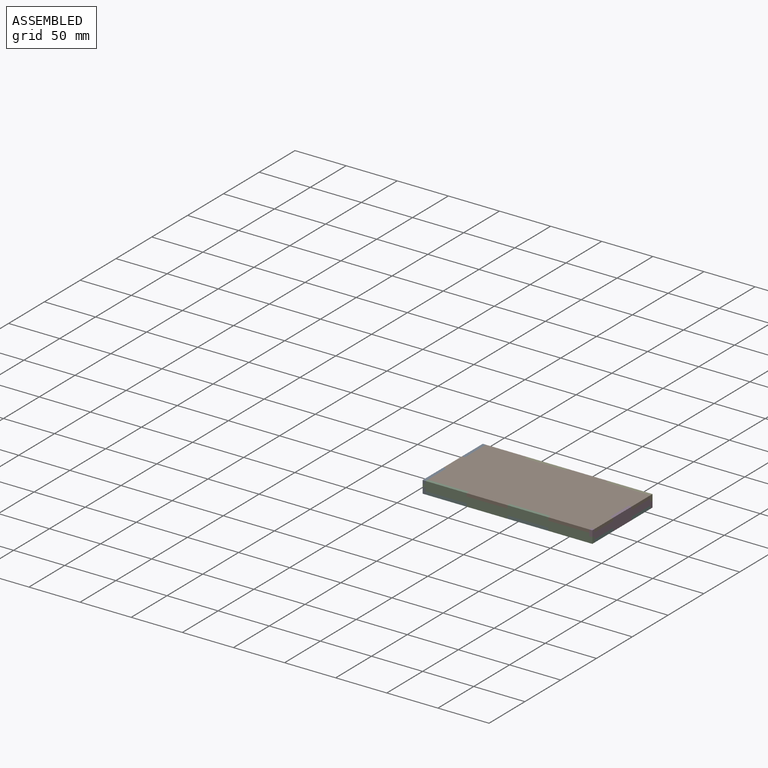
[diagram: assembled view]
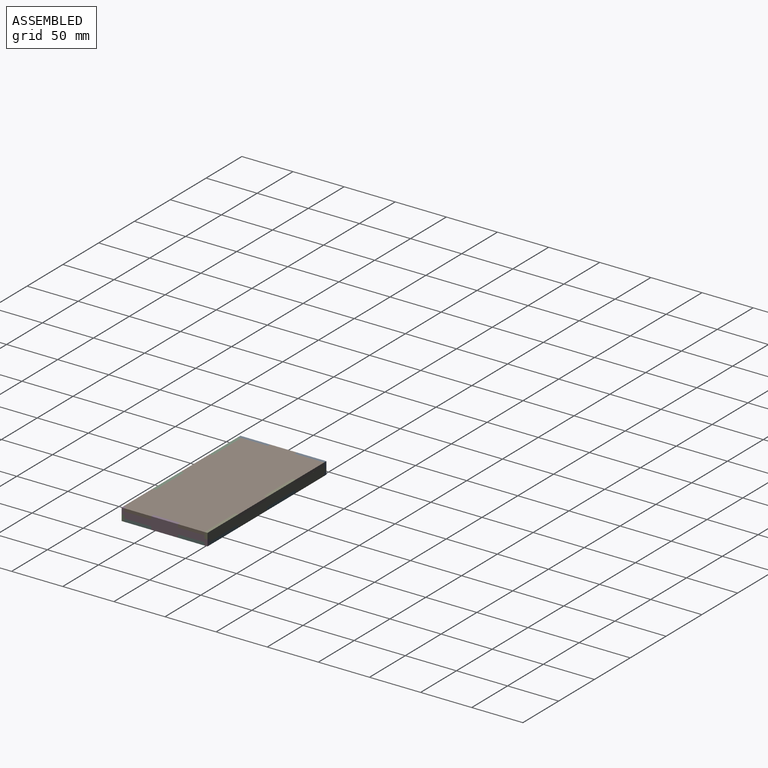
[diagram: assembled view, second angle]
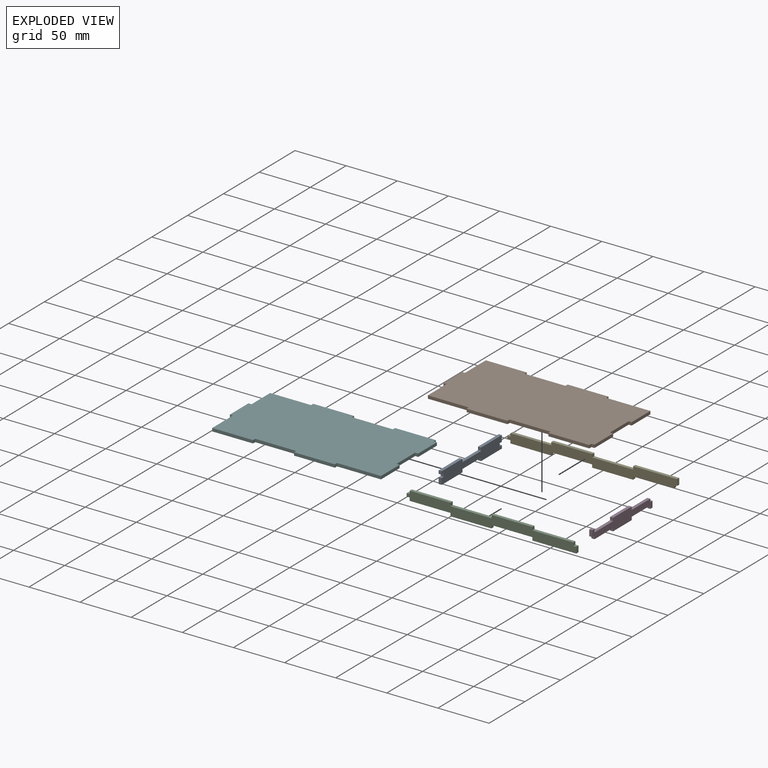
[diagram: exploded view]
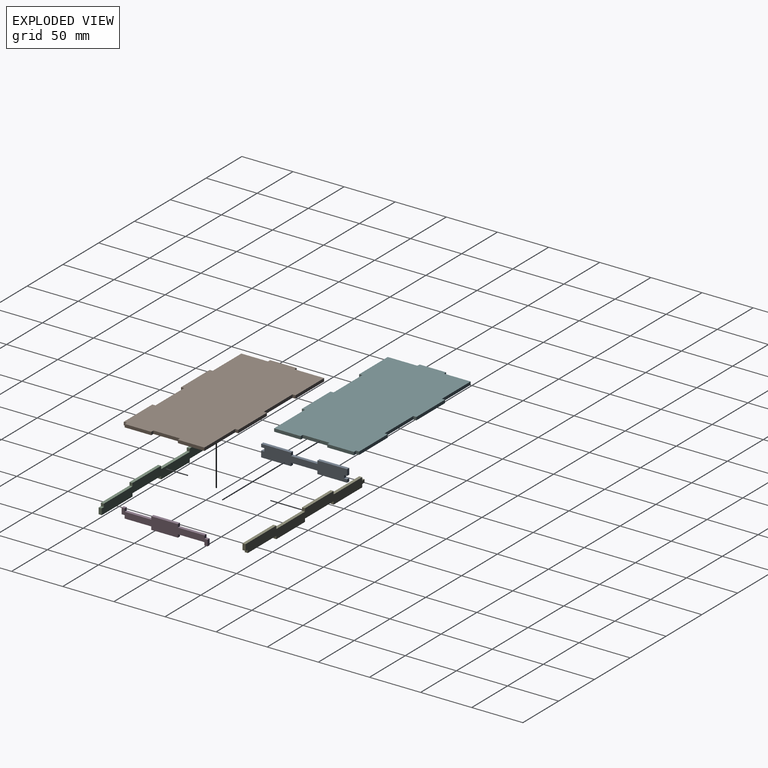
[diagram: exploded view, second angle]
ASSEMBLY  parts=6 mates=5
PART A: 22 faces, bbox 3x84x12 mm
  f0: plane 29x3mm, normal (0,0,-1), area 87mm2, adj f1,f19,f20,f21
  f1: plane 3x3mm, normal (0,-1,0), area 9mm2, adj f0,f2,f20,f21
  f2: plane 26x3mm, normal (0,0,-1), area 78mm2, adj f1,f3,f20,f21
  f3: plane 3x3mm, normal (0,1,0), area 9mm2, adj f2,f4,f20,f21
  f4: plane 29x3mm, normal (0,0,-1), area 87mm2, adj f3,f5,f20,f21
  f5: plane 6x3mm, normal (0,-1,0), area 18mm2, adj f4,f6,f20,f21
  f6: plane 3x3mm, normal (0,0,1), area 9mm2, adj f5,f7,f20,f21
  f7: plane 3x3mm, normal (0,-1,0), area 9mm2, adj f6,f8,f20,f21
  f8: plane 3x3mm, normal (0,0,-1), area 9mm2, adj f7,f9,f20,f21
  f9: plane 3x3mm, normal (0,-1,0), area 9mm2, adj f8,f10,f20,f21
  f10: plane 29x3mm, normal (0,0,1), area 87mm2, adj f9,f11,f20,f21
  f11: plane 3x3mm, normal (0,1,0), area 9mm2, adj f10,f12,f20,f21
  f12: plane 26x3mm, normal (0,0,1), area 78mm2, adj f11,f13,f20,f21
  f13: plane 3x3mm, normal (0,-1,0), area 9mm2, adj f12,f14,f20,f21
  f14: plane 29x3mm, normal (0,0,1), area 87mm2, adj f13,f15,f20,f21
  f15: plane 6x3mm, normal (0,1,0), area 18mm2, adj f14,f16,f20,f21
  f16: plane 3x3mm, normal (0,0,-1), area 9mm2, adj f15,f17,f20,f21
  f17: plane 3x3mm, normal (0,1,0), area 9mm2, adj f16,f18,f20,f21
  f18: plane 3x3mm, normal (0,0,1), area 9mm2, adj f17,f19,f20,f21
  f19: plane 3x3mm, normal (0,1,0), area 9mm2, adj f0,f18,f20,f21
  f20: plane 84x12mm, normal (1,0,0), area 834mm2, adj f0,f1,f2,f3,f4,f5,f6,f7
  f21: plane 84x12mm, normal (-1,0,0), area 834mm2, adj f0,f1,f2,f3,f4,f5,f6,f7
PART B: 28 faces, bbox 166x84x3 mm
  f0: plane 26x3mm, normal (1,0,0), area 78mm2, adj f1,f25,f26,f27
  f1: plane 43x3mm, normal (0,1,0), area 129mm2, adj f0,f2,f26,f27
  f2: plane 3x3mm, normal (1,0,0), area 9mm2, adj f1,f3,f26,f27
  f3: plane 40x3mm, normal (0,1,0), area 120mm2, adj f2,f4,f26,f27
  f4: plane 3x3mm, normal (-1,0,0), area 9mm2, adj f3,f5,f26,f27
  f5: plane 40x3mm, normal (0,1,0), area 120mm2, adj f4,f6,f26,f27
  f6: plane 3x3mm, normal (1,0,0), area 9mm2, adj f5,f7,f26,f27
  f7: plane 40x3mm, normal (0,1,0), area 120mm2, adj f6,f8,f26,f27
  f8: plane 29x3mm, normal (-1,0,0), area 87mm2, adj f7,f9,f26,f27
  f9: plane 3x3mm, normal (0,1,0), area 9mm2, adj f8,f10,f26,f27
  f10: plane 26x3mm, normal (-1,0,0), area 78mm2, adj f9,f11,f26,f27
  f11: plane 3x3mm, normal (0,-1,0), area 9mm2, adj f10,f12,f26,f27
  f12: plane 26x3mm, normal (-1,0,0), area 78mm2, adj f11,f13,f26,f27
  f13: plane 40x3mm, normal (0,-1,0), area 120mm2, adj f12,f14,f26,f27
  f14: plane 3x3mm, normal (-1,0,0), area 9mm2, adj f13,f15,f26,f27
  f15: plane 40x3mm, normal (0,-1,0), area 120mm2, adj f14,f16,f26,f27
  f16: plane 3x3mm, normal (1,0,0), area 9mm2, adj f15,f17,f26,f27
  f17: plane 40x3mm, normal (0,-1,0), area 120mm2, adj f16,f18,f26,f27
  f18: plane 3x3mm, normal (-1,0,0), area 9mm2, adj f17,f19,f26,f27
  f19: plane 40x3mm, normal (0,-1,0), area 120mm2, adj f18,f20,f26,f27
  f20: plane 3x3mm, normal (1,0,0), area 9mm2, adj f19,f21,f26,f27
  f21: plane 3x3mm, normal (0,-1,0), area 9mm2, adj f20,f22,f26,f27
  f22: plane 26x3mm, normal (1,0,0), area 78mm2, adj f21,f23,f26,f27
  f23: plane 3x3mm, normal (0,1,0), area 9mm2, adj f22,f24,f26,f27
  f24: plane 26x3mm, normal (1,0,0), area 78mm2, adj f23,f25,f26,f27
  f25: plane 3x3mm, normal (0,-1,0), area 9mm2, adj f0,f24,f26,f27
  f26: plane 166x84mm, normal (0,0,1), area 13194mm2, adj f0,f1,f2,f3,f4,f5,f6,f7
  f27: plane 166x84mm, normal (0,0,-1), area 13194mm2, adj f0,f1,f2,f3,f4,f5,f6,f7
PART C: 24 faces, bbox 166x3x12 mm
  f0: plane 6x3mm, normal (1,0,0), area 18mm2, adj f1,f21,f22,f23
  f1: plane 3x3mm, normal (0,0,-1), area 9mm2, adj f0,f2,f22,f23
  f2: plane 3x3mm, normal (1,0,0), area 9mm2, adj f1,f3,f22,f23
  f3: plane 40x3mm, normal (0,0,-1), area 120mm2, adj f2,f4,f22,f23
  f4: plane 3x3mm, normal (1,0,0), area 9mm2, adj f3,f5,f22,f23
  f5: plane 40x3mm, normal (0,0,-1), area 120mm2, adj f4,f6,f22,f23
  f6: plane 3x3mm, normal (-1,0,0), area 9mm2, adj f5,f7,f22,f23
  f7: plane 40x3mm, normal (0,0,-1), area 120mm2, adj f6,f8,f22,f23
  f8: plane 3x3mm, normal (1,0,0), area 9mm2, adj f7,f9,f22,f23
  f9: plane 40x3mm, normal (0,0,-1), area 120mm2, adj f8,f10,f22,f23
  f10: plane 3x3mm, normal (-1,0,0), area 9mm2, adj f9,f11,f22,f23
  f11: plane 3x3mm, normal (0,0,-1), area 9mm2, adj f10,f12,f22,f23
  f12: plane 3x3mm, normal (-1,0,0), area 9mm2, adj f11,f13,f22,f23
  f13: plane 3x3mm, normal (0,0,1), area 9mm2, adj f12,f14,f22,f23
  f14: plane 3x3mm, normal (-1,0,0), area 9mm2, adj f13,f15,f22,f23
  f15: plane 40x3mm, normal (0,0,1), area 120mm2, adj f14,f16,f22,f23
  f16: plane 3x3mm, normal (-1,0,0), area 9mm2, adj f15,f17,f22,f23
  f17: plane 40x3mm, normal (0,0,1), area 120mm2, adj f16,f18,f22,f23
  f18: plane 3x3mm, normal (1,0,0), area 9mm2, adj f17,f19,f22,f23
  f19: plane 40x3mm, normal (0,0,1), area 120mm2, adj f18,f20,f22,f23
  f20: plane 3x3mm, normal (-1,0,0), area 9mm2, adj f19,f21,f22,f23
  f21: plane 43x3mm, normal (0,0,1), area 129mm2, adj f0,f20,f22,f23
  f22: plane 166x12mm, normal (0,-1,0), area 1467mm2, adj f0,f1,f2,f3,f4,f5,f6,f7
  f23: plane 166x12mm, normal (0,1,0), area 1467mm2, adj f0,f1,f2,f3,f4,f5,f6,f7
PART D: 22 faces, bbox 3x84x12 mm
  f0: plane 6x3mm, normal (0,-1,0), area 18mm2, adj f1,f19,f20,f21
  f1: plane 3x3mm, normal (0,0,-1), area 9mm2, adj f0,f2,f20,f21
  f2: plane 3x3mm, normal (0,-1,0), area 9mm2, adj f1,f3,f20,f21
  f3: plane 26x3mm, normal (0,0,-1), area 78mm2, adj f2,f4,f20,f21
  f4: plane 3x3mm, normal (0,-1,0), area 9mm2, adj f3,f5,f20,f21
  f5: plane 26x3mm, normal (0,0,-1), area 78mm2, adj f4,f6,f20,f21
  f6: plane 3x3mm, normal (0,1,0), area 9mm2, adj f5,f7,f20,f21
  f7: plane 26x3mm, normal (0,0,-1), area 78mm2, adj f6,f8,f20,f21
  f8: plane 3x3mm, normal (0,-1,0), area 9mm2, adj f7,f9,f20,f21
  f9: plane 3x3mm, normal (0,0,-1), area 9mm2, adj f8,f10,f20,f21
  f10: plane 6x3mm, normal (0,1,0), area 18mm2, adj f9,f11,f20,f21
  f11: plane 3x3mm, normal (0,0,1), area 9mm2, adj f10,f12,f20,f21
  f12: plane 3x3mm, normal (0,1,0), area 9mm2, adj f11,f13,f20,f21
  f13: plane 26x3mm, normal (0,0,1), area 78mm2, adj f12,f14,f20,f21
  f14: plane 3x3mm, normal (0,1,0), area 9mm2, adj f13,f15,f20,f21
  f15: plane 26x3mm, normal (0,0,1), area 78mm2, adj f14,f16,f20,f21
  f16: plane 3x3mm, normal (0,-1,0), area 9mm2, adj f15,f17,f20,f21
  f17: plane 26x3mm, normal (0,0,1), area 78mm2, adj f16,f18,f20,f21
  f18: plane 3x3mm, normal (0,1,0), area 9mm2, adj f17,f19,f20,f21
  f19: plane 3x3mm, normal (0,0,1), area 9mm2, adj f0,f18,f20,f21
  f20: plane 84x12mm, normal (-1,0,0), area 660mm2, adj f0,f1,f2,f3,f4,f5,f6,f7
  f21: plane 84x12mm, normal (1,0,0), area 660mm2, adj f0,f1,f2,f3,f4,f5,f6,f7
PART E: same geometry as C
PART F: same geometry as B
PLACE A t=(-6.71,-87.03,85.33)mm
PLACE B t=(-6.71,-87.03,85.33)mm
PLACE C rot(axis=(1,0,0),180deg) t=(-6.71,-87.03,79.33)mm
PLACE D t=(-6.71,-87.03,85.33)mm
PLACE E t=(-6.71,-87.03,85.33)mm
PLACE F rot(axis=(-1,0,0),180deg) t=(-6.71,-87.03,79.33)mm
MATE fastened C.f16 <-> F.f6  axis (-1,0,0) through (-46.71,-127.53,77.83)mm
MATE fastened C.f6 <-> B.f16  axis (-1,0,0) through (-6.71,-127.53,86.83)mm
MATE fastened D.f16 <-> B.f23  axis (0,-1,0) through (74.79,-100.03,86.83)mm
MATE fastened E.f20 <-> B.f2  axis (-1,0,0) through (33.29,-46.53,86.83)mm
MATE fastened A.f13 <-> B.f9  axis (0,-1,0) through (-88.21,-74.03,86.83)mm
